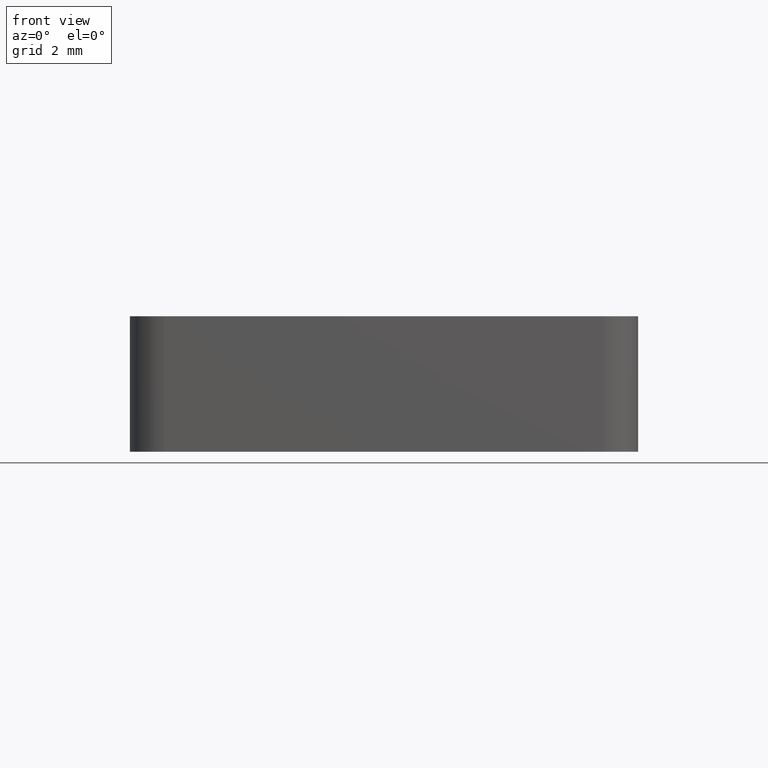
[diagram: clean part render]
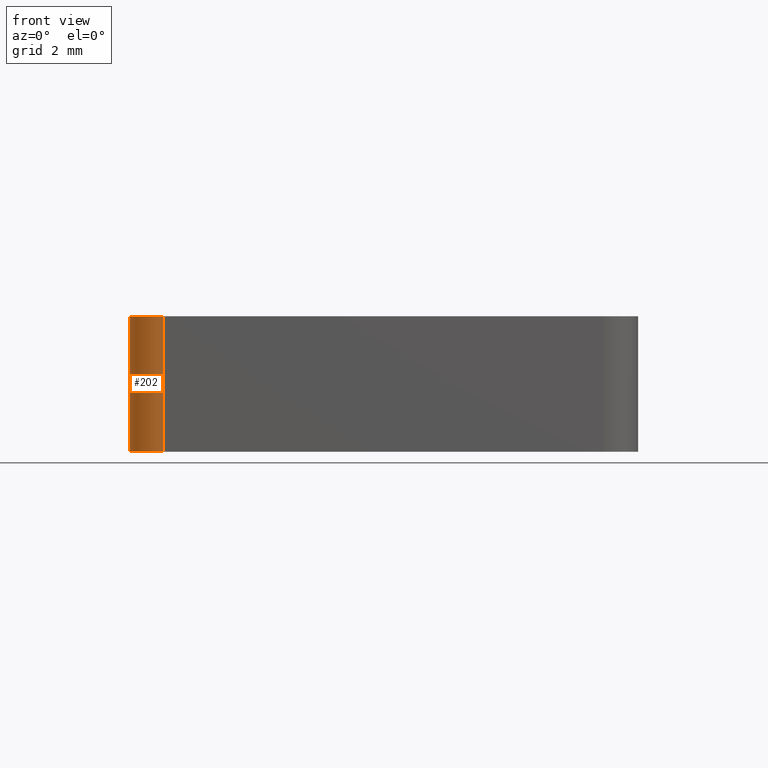
[diagram: same view with one face highlighted and labeled with its STEP entity id]
A machine part, front view. The second image highlights one B-rep face of the part: STEP entity #202.
In plain terms, the highlighted cylindrical surface (edge-blend (fillet) strip) has radius 1 mm, axis along (0, 0, -1).
Its self-contained STEP definition (entity closure, byte-faithful):
#30=FACE_OUTER_BOUND('',#43,.T.);
#43=EDGE_LOOP('',(#174,#175,#176,#177));
#51=LINE('',#326,#68);
#55=LINE('',#335,#72);
#68=VECTOR('',#264,4.);
#72=VECTOR('',#270,4.);
#85=CIRCLE('',#239,1.);
#89=CIRCLE('',#244,1.);
#94=VERTEX_POINT('',#320);
#96=VERTEX_POINT('',#324);
#97=VERTEX_POINT('',#328);
#100=VERTEX_POINT('',#333);
#115=EDGE_CURVE('',#96,#94,#51,.T.);
#119=EDGE_CURVE('',#100,#97,#55,.T.);
#130=EDGE_CURVE('',#94,#100,#85,.T.);
#134=EDGE_CURVE('',#97,#96,#89,.T.);
#174=ORIENTED_EDGE('',*,*,#130,.F.);
#175=ORIENTED_EDGE('',*,*,#115,.F.);
#176=ORIENTED_EDGE('',*,*,#134,.F.);
#177=ORIENTED_EDGE('',*,*,#119,.F.);
#191=CYLINDRICAL_SURFACE('',#246,1.);
#202=ADVANCED_FACE('',(#30),#191,.T.);
#239=AXIS2_PLACEMENT_3D('',#357,#289,#290);
#244=AXIS2_PLACEMENT_3D('',#362,#299,#300);
#246=AXIS2_PLACEMENT_3D('',#364,#303,#304);
#264=DIRECTION('',(0.,0.,1.));
#270=DIRECTION('',(0.,0.,-1.));
#289=DIRECTION('center_axis',(0.,0.,1.));
#290=DIRECTION('ref_axis',(1.,0.,0.));
#299=DIRECTION('center_axis',(0.,0.,-1.));
#300=DIRECTION('ref_axis',(1.,0.,0.));
#303=DIRECTION('center_axis',(0.,0.,-1.));
#304=DIRECTION('ref_axis',(-0.707106781186547,-0.707106781186548,0.));
#320=CARTESIAN_POINT('',(-7.5,-6.49999999999998,0.));
#324=CARTESIAN_POINT('',(-7.5,-6.49999999999998,-4.));
#326=CARTESIAN_POINT('',(-7.5,-6.49999999999998,-4.));
#328=CARTESIAN_POINT('',(-6.5,-7.5,-4.));
#333=CARTESIAN_POINT('',(-6.5,-7.5,0.));
#335=CARTESIAN_POINT('',(-6.5,-7.5,0.));
#357=CARTESIAN_POINT('Origin',(-6.5,-6.49999999999998,0.));
#362=CARTESIAN_POINT('Origin',(-6.5,-6.49999999999998,-4.));
#364=CARTESIAN_POINT('Origin',(-6.49999999999999,-6.49999999999997,1.E-8));